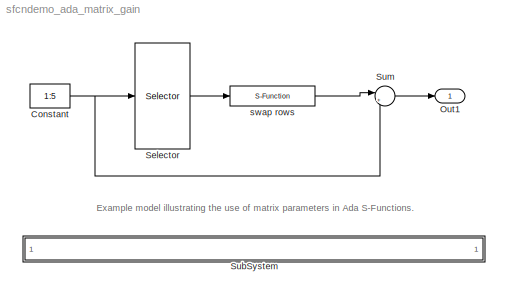
MODEL sfcndemo_ada_matrix_gain
KIND model
BLOCK [Constant] Constant
  Value = 1:5
BLOCK [Outport] Out1
  IconDisplay = Port number
BLOCK [Selector] Selector
  Elements = [2 5 1 3 4]
  InputPortWidth = 5
  Ports = [1, 1]
BLOCK [SubSystem] SubSystem
  MaskDisplay = disp('matlabroot<path>');\n
  MaskIconFrame = on
  MaskIconOpaque = on
  MaskIconRotate = none
  MaskIconUnits = autoscale
  MinAlgLoopOccurrences = off
  OpenFcn = evalin('base','edit(fullfile(matlabroot,''simulink'',''ada'',''examples'',''matrix_gain'',''matrix_gain.adb''))')
  Ports = []
  PropExecContextAcrossSSBoundary = on
  RTWSystemCode = Auto
  TreatAsAtomicUnit = off
BLOCK [Sum] Sum
  IconShape = round
  Inputs = |+-
  Ports = [2, 1]
BLOCK [S-Function] swap rows
  FunctionName = ada_matrix_gain
  Parameters = [0 0 1 0 0; 1 0 0 0 0; 0 0 0 1 0; 0 0 0 0 1; 0 1 0 0 0]
  Ports = [1, 1]
ANNOTATION (root): Example model illustrating the use of matrix parameters in Ada S-Functions.
NET Constant:1 -> Selector:1, Sum:2
LINE Selector:1 -> swap rows:1
LINE Sum:1 -> Out1:1
LINE swap rows:1 -> Sum:1
note: NET lines group one-source signal fan-out (src -> all destinations, sorted); 1:1 wires keep LINE
note: 1 file-system path scrubbed to <path> (not preserved elsewhere — flat text is the only slx artifact)
